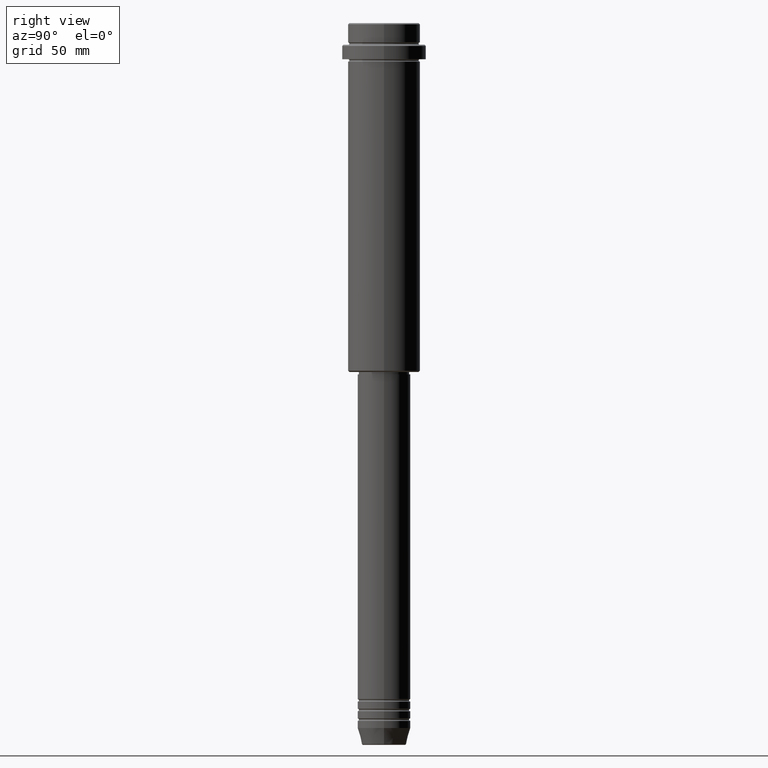
[diagram: clean part render]
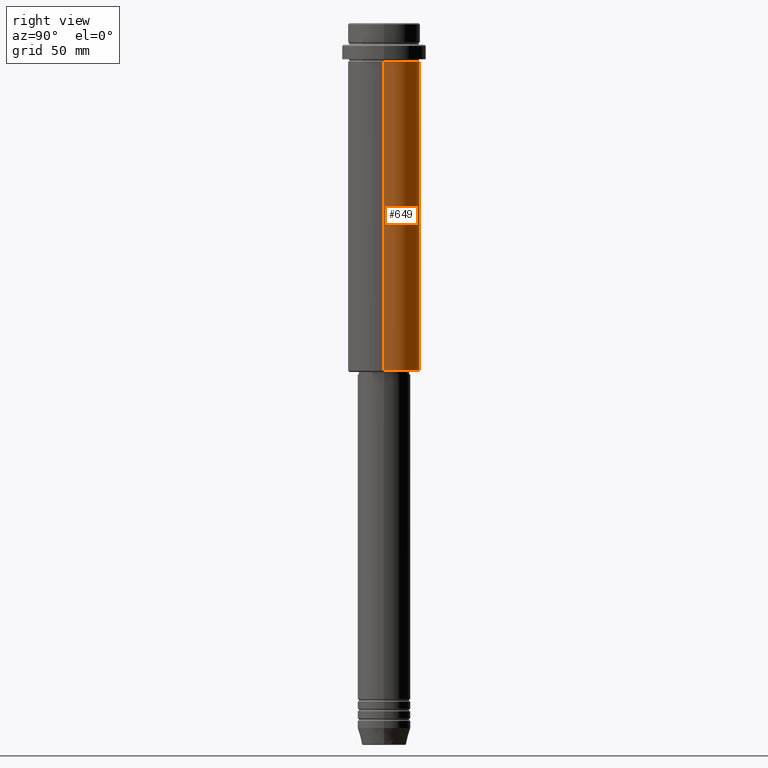
[diagram: same view with one face highlighted and labeled with its STEP entity id]
A machine part, right view. The second image highlights one B-rep face of the part: STEP entity #649.
In plain terms, the highlighted cylindrical surface (edge-blend (fillet) strip) has radius 15 mm, axis along (-0, -0, 1).
Its self-contained STEP definition (entity closure, byte-faithful):
#33 = CARTESIAN_POINT ( 'NONE',  ( 0.000000000000000000, 0.000000000000000000, 0.000000000000000000 ) ) ;
#63 = DIRECTION ( 'NONE',  ( -1.000000000000000000, 0.000000000000000000, 0.000000000000000000 ) ) ;
#150 = CARTESIAN_POINT ( 'NONE',  ( -15.00000000000000000, 1.836970198721029589E-15, -144.5000000000000568 ) ) ;
#190 = CARTESIAN_POINT ( 'NONE',  ( 0.000000000000000000, 0.000000000000000000, -144.5000000000000568 ) ) ;
#201 = EDGE_LOOP ( 'NONE', ( #908, #798, #707, #1293 ) ) ;
#254 = FACE_OUTER_BOUND ( 'NONE', #201, .T. ) ;
#260 = CARTESIAN_POINT ( 'NONE',  ( -15.00000000000000355, 1.836970198721029983E-15, -16.00000000000000000 ) ) ;
#261 = VERTEX_POINT ( 'NONE', #260 ) ;
#275 = CARTESIAN_POINT ( 'NONE',  ( -15.00000000000000000, 1.836970198721029589E-15, 0.000000000000000000 ) ) ;
#305 = DIRECTION ( 'NONE',  ( -0.000000000000000000, -0.000000000000000000, 1.000000000000000000 ) ) ;
#373 = DIRECTION ( 'NONE',  ( -0.000000000000000000, -0.000000000000000000, 1.000000000000000000 ) ) ;
#395 = AXIS2_PLACEMENT_3D ( 'NONE', #33, #470, #1020 ) ;
#423 = EDGE_CURVE ( 'NONE', #704, #1363, #876, .T. ) ;
#470 = DIRECTION ( 'NONE',  ( -0.000000000000000000, -0.000000000000000000, 1.000000000000000000 ) ) ;
#484 = CIRCLE ( 'NONE', #812, 15.00000000000000178 ) ;
#490 = CYLINDRICAL_SURFACE ( 'NONE', #395, 15.00000000000000000 ) ;
#582 = CARTESIAN_POINT ( 'NONE',  ( 15.00000000000000000, 0.000000000000000000, 0.000000000000000000 ) ) ;
#633 = DIRECTION ( 'NONE',  ( -0.000000000000000000, -0.000000000000000000, 1.000000000000000000 ) ) ;
#649 = ADVANCED_FACE ( 'NONE', ( #254 ), #490, .T. ) ;
#657 = EDGE_CURVE ( 'NONE', #1363, #261, #1249, .T. ) ;
#667 = CARTESIAN_POINT ( 'NONE',  ( 15.00000000000000178, 0.000000000000000000, -16.00000000000000000 ) ) ;
#704 = VERTEX_POINT ( 'NONE', #787 ) ;
#707 = ORIENTED_EDGE ( 'NONE', *, *, #889, .F. ) ;
#735 = DIRECTION ( 'NONE',  ( -0.000000000000000000, -0.000000000000000000, 1.000000000000000000 ) ) ;
#747 = DIRECTION ( 'NONE',  ( 1.000000000000000000, 0.000000000000000000, 0.000000000000000000 ) ) ;
#787 = CARTESIAN_POINT ( 'NONE',  ( 15.00000000000000000, 0.000000000000000000, -144.5000000000000568 ) ) ;
#798 = ORIENTED_EDGE ( 'NONE', *, *, #657, .T. ) ;
#812 = AXIS2_PLACEMENT_3D ( 'NONE', #1160, #305, #747 ) ;
#876 = CIRCLE ( 'NONE', #1078, 15.00000000000000000 ) ;
#879 = VECTOR ( 'NONE', #373, 1000.000000000000000 ) ;
#889 = EDGE_CURVE ( 'NONE', #1262, #261, #484, .T. ) ;
#908 = ORIENTED_EDGE ( 'NONE', *, *, #423, .T. ) ;
#995 = EDGE_CURVE ( 'NONE', #704, #1262, #1164, .T. ) ;
#1020 = DIRECTION ( 'NONE',  ( 1.000000000000000000, 0.000000000000000000, 0.000000000000000000 ) ) ;
#1078 = AXIS2_PLACEMENT_3D ( 'NONE', #190, #633, #63 ) ;
#1098 = VECTOR ( 'NONE', #735, 1000.000000000000000 ) ;
#1160 = CARTESIAN_POINT ( 'NONE',  ( 0.000000000000000000, 0.000000000000000000, -16.00000000000000000 ) ) ;
#1164 = LINE ( 'NONE', #582, #879 ) ;
#1249 = LINE ( 'NONE', #275, #1098 ) ;
#1262 = VERTEX_POINT ( 'NONE', #667 ) ;
#1293 = ORIENTED_EDGE ( 'NONE', *, *, #995, .F. ) ;
#1363 = VERTEX_POINT ( 'NONE', #150 ) ;